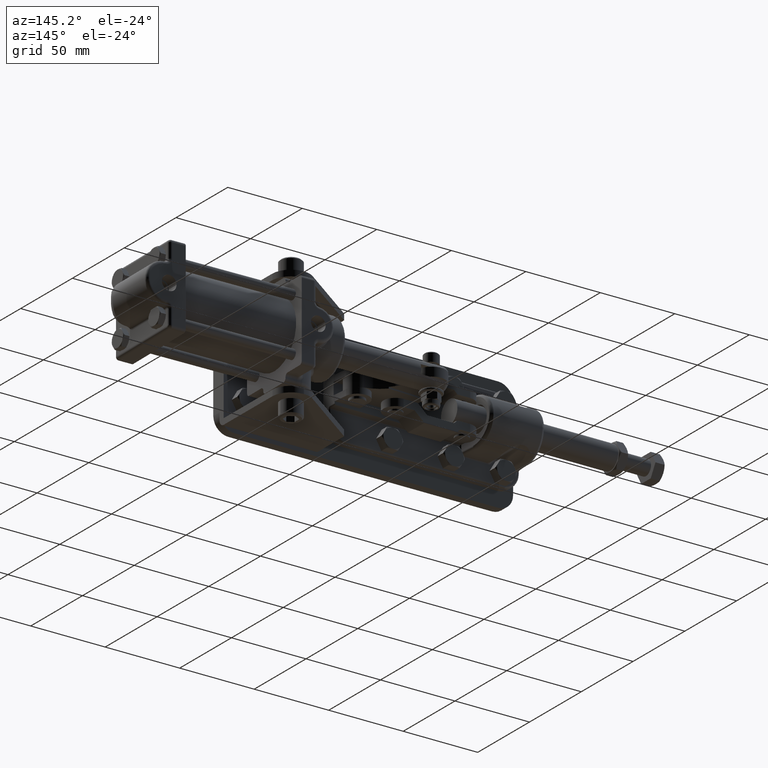
[diagram: clean part render]
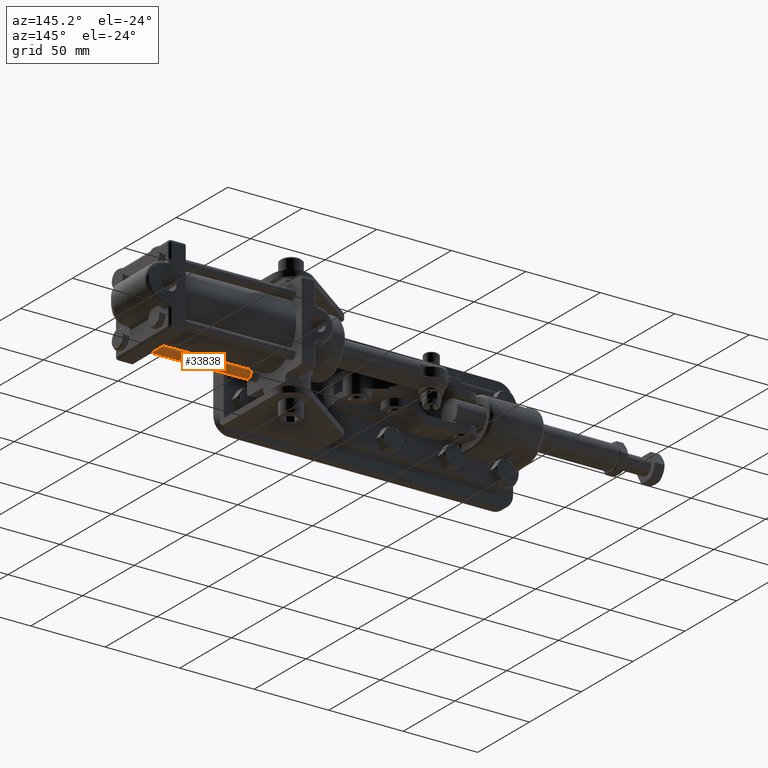
[diagram: same view with one face highlighted and labeled with its STEP entity id]
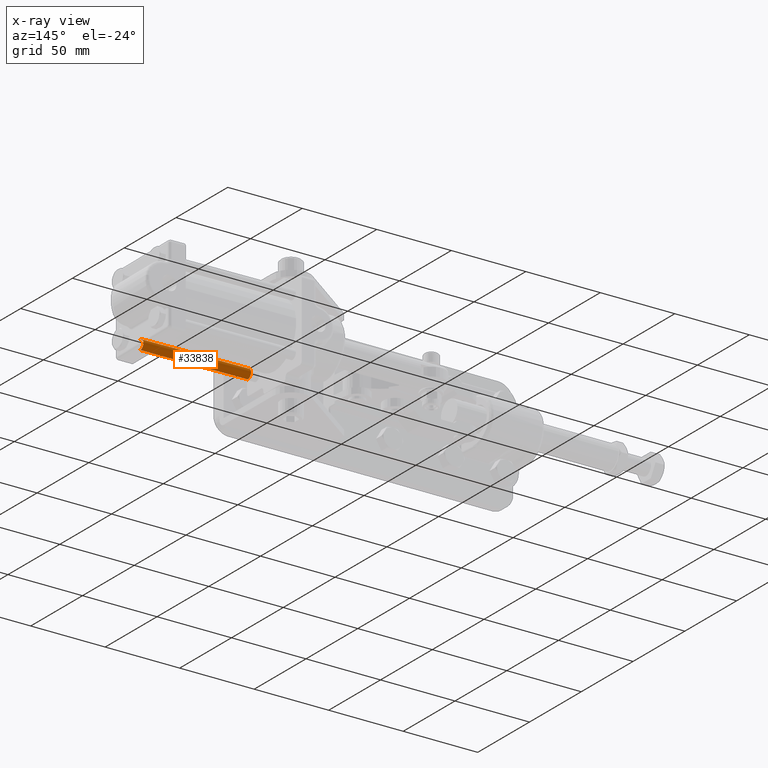
[diagram: x-ray of the same camera — body ghosted, the highlighted face saturated]
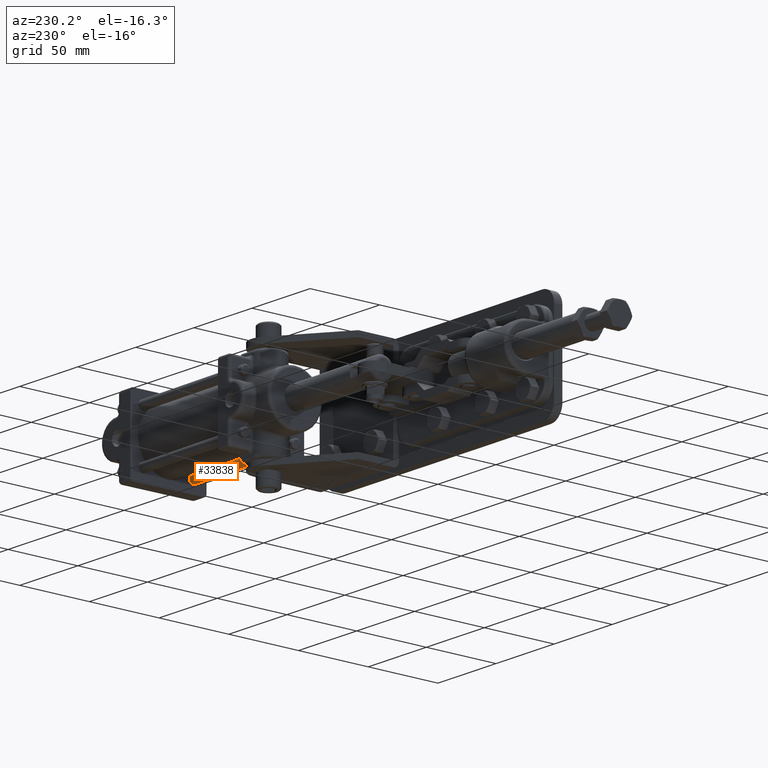
[diagram: same view with one face highlighted and labeled with its STEP entity id]
A machine part, auxiliary view. The second image highlights one B-rep face of the part: STEP entity #33838.
The next image is the same camera in x-ray: the body ghosted, the highlighted face saturated — about 0% of this face is hidden behind the body in this view.
A second angle (auxiliary view) of the same face is appended — the face is thin or edge-on in the first view.
In plain terms, the highlighted cylindrical surface (edge-blend (fillet) strip) has radius 3.175 mm, axis along (0.9999, -0.0153, 0).
Its self-contained STEP definition (entity closure, byte-faithful):
#90 = VERTEX_POINT ( 'NONE', #3552 ) ;
#472 = CARTESIAN_POINT ( 'NONE',  ( 287.3517935432689100, 31.41915678594801200, -18.00000000000255400 ) ) ;
#818 = ORIENTED_EDGE ( 'NONE', *, *, #28579, .F. ) ;
#2648 = DIRECTION ( 'NONE',  ( 0.0000000000000000000, 2.622574073917696500E-014, 1.000000000000000000 ) ) ;
#3552 = CARTESIAN_POINT ( 'NONE',  ( 200.7489475767536100, 32.74846655673936600, -14.82500000000256800 ) ) ;
#5286 = CARTESIAN_POINT ( 'NONE',  ( 200.7489475767536100, 32.74846655673920300, -21.17500000000255500 ) ) ;
#6854 = CYLINDRICAL_SURFACE ( 'NONE', #24969, 3.174999999999993600 ) ;
#8817 = EDGE_LOOP ( 'NONE', ( #30268, #15138, #9712, #818 ) ) ;
#9712 = ORIENTED_EDGE ( 'NONE', *, *, #31583, .F. ) ;
#10298 = VERTEX_POINT ( 'NONE', #11202 ) ;
#10713 = CARTESIAN_POINT ( 'NONE',  ( 272.2133767962244500, 31.65152380658769400, -18.00000000000255400 ) ) ;
#11202 = CARTESIAN_POINT ( 'NONE',  ( 272.2133767962244500, 31.65152380658777500, -14.82500000000256300 ) ) ;
#11502 = VECTOR ( 'NONE', #32167, 1000.000000000000100 ) ;
#11687 = EDGE_CURVE ( 'NONE', #90, #10298, #18579, .T. ) ;
#13400 = DIRECTION ( 'NONE',  ( 0.01534768501236290000, 0.9998822173460038000, 0.0000000000000000000 ) ) ;
#13829 = DIRECTION ( 'NONE',  ( 0.9998822173459879200, -0.01534768501340451300, 9.312529166389388800E-017 ) ) ;
#14756 = DIRECTION ( 'NONE',  ( 0.9998822173459878100, -0.01534768501340451200, 9.312529166389387600E-017 ) ) ;
#14857 = VERTEX_POINT ( 'NONE', #5286 ) ;
#15138 = ORIENTED_EDGE ( 'NONE', *, *, #11687, .T. ) ;
#18579 = LINE ( 'NONE', #24136, #11502 ) ;
#18665 = DIRECTION ( 'NONE',  ( -0.9998822173459879200, 0.01534768501340451300, -9.312529166389388800E-017 ) ) ;
#22841 = EDGE_CURVE ( 'NONE', #90, #14857, #29692, .T. ) ;
#23686 = VERTEX_POINT ( 'NONE', #28397 ) ;
#24136 = CARTESIAN_POINT ( 'NONE',  ( 287.3517935432689100, 31.41915678594809300, -14.82500000000256100 ) ) ;
#24202 = AXIS2_PLACEMENT_3D ( 'NONE', #34653, #18665, #2648 ) ;
#24969 = AXIS2_PLACEMENT_3D ( 'NONE', #472, #13829, #32600 ) ;
#25105 = LINE ( 'NONE', #30723, #31304 ) ;
#28397 = CARTESIAN_POINT ( 'NONE',  ( 272.2133767962244500, 31.65152380658760800, -21.17500000000254800 ) ) ;
#28579 = EDGE_CURVE ( 'NONE', #14857, #23686, #25105, .T. ) ;
#29342 = DIRECTION ( 'NONE',  ( 0.9998822173460041300, -0.01534768501235420100, 9.312529166378306600E-017 ) ) ;
#29692 = CIRCLE ( 'NONE', #24202, 3.174999999999995400 ) ;
#30268 = ORIENTED_EDGE ( 'NONE', *, *, #22841, .F. ) ;
#30723 = CARTESIAN_POINT ( 'NONE',  ( 287.3517935432689100, 31.41915678594793000, -21.17500000000254800 ) ) ;
#30799 = CIRCLE ( 'NONE', #31820, 3.174999999999993600 ) ;
#31304 = VECTOR ( 'NONE', #14756, 1000.000000000000100 ) ;
#31456 = FACE_OUTER_BOUND ( 'NONE', #8817, .T. ) ;
#31583 = EDGE_CURVE ( 'NONE', #23686, #10298, #30799, .T. ) ;
#31820 = AXIS2_PLACEMENT_3D ( 'NONE', #10713, #29342, #13400 ) ;
#32167 = DIRECTION ( 'NONE',  ( 0.9998822173459878100, -0.01534768501340451200, 9.312529166389387600E-017 ) ) ;
#32600 = DIRECTION ( 'NONE',  ( 0.0000000000000000000, -2.622574073917698100E-014, -1.000000000000000000 ) ) ;
#33838 = ADVANCED_FACE ( 'NONE', ( #31456 ), #6854, .T. ) ;
#34653 = CARTESIAN_POINT ( 'NONE',  ( 200.7489475767536100, 32.74846655673928100, -18.00000000000256200 ) ) ;